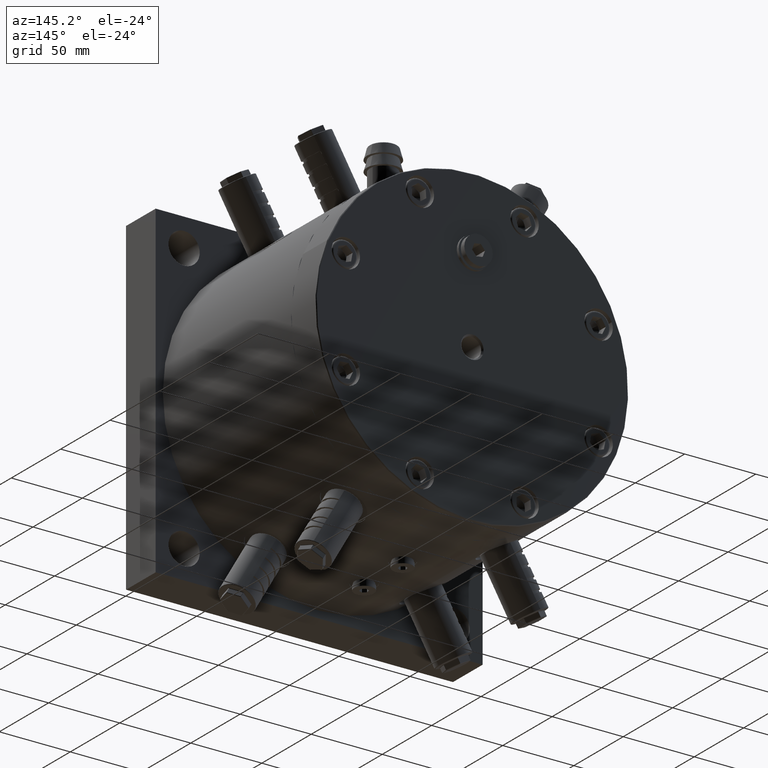
[diagram: clean part render]
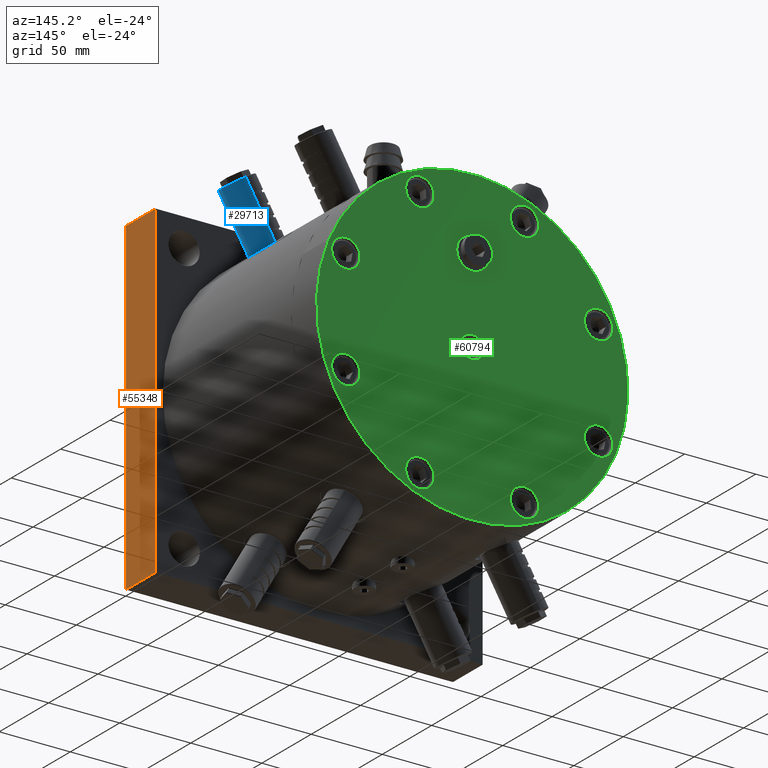
[diagram: same view with three faces highlighted in distinct colors, each labeled with its STEP entity id]
A machine part, auxiliary view with three faces highlighted in distinct colors.
Their STEP definitions:

[orange] entity #55348 — the highlighted planar face has unit normal (-1, 0, -0).
#143 = FACE_OUTER_BOUND ( 'NONE', #8235, .T. ) ;
#543 = CARTESIAN_POINT ( 'NONE',  ( 115.0000000000000000, 3.469446951953615000E-015, -115.0000000000000000 ) ) ;
#973 = VERTEX_POINT ( 'NONE', #70862 ) ;
#1152 = VECTOR ( 'NONE', #33477, 1000.000000000000000 ) ;
#2575 = VERTEX_POINT ( 'NONE', #12287 ) ;
#6454 = DIRECTION ( 'NONE',  ( -2.465922601272785300E-016, 1.478485803948513900E-018, 1.000000000000000000 ) ) ;
#7512 = AXIS2_PLACEMENT_3D ( 'NONE', #543, #40658, #28328 ) ;
#8235 = EDGE_LOOP ( 'NONE', ( #38298, #57284, #51667, #12713 ) ) ;
#11697 = CARTESIAN_POINT ( 'NONE',  ( 115.0000000000000000, 3.469446951953615000E-015, 115.0000000000000000 ) ) ;
#12287 = CARTESIAN_POINT ( 'NONE',  ( 115.0000000000000000, 30.00000000000000000, 115.0000000000000000 ) ) ;
#12713 = ORIENTED_EDGE ( 'NONE', *, *, #60974, .T. ) ;
#15196 = CARTESIAN_POINT ( 'NONE',  ( 115.0000000000000000, 3.469446951953615000E-015, -115.0000000000000000 ) ) ;
#15692 = VERTEX_POINT ( 'NONE', #50831 ) ;
#18186 = DIRECTION ( 'NONE',  ( -6.938893903907229900E-018, 1.000000000000000000, -1.387778780781446000E-017 ) ) ;
#21654 = LINE ( 'NONE', #11697, #46845 ) ;
#24488 = VECTOR ( 'NONE', #6454, 1000.000000000000000 ) ;
#25965 = CARTESIAN_POINT ( 'NONE',  ( 115.0000000000000000, 3.469446951953615000E-015, -115.0000000000000000 ) ) ;
#28328 = DIRECTION ( 'NONE',  ( 2.465922601272785300E-016, -1.478485803948513900E-018, -1.000000000000000000 ) ) ;
#33477 = DIRECTION ( 'NONE',  ( -6.938893903907229900E-018, 1.000000000000000000, -1.387778780781446000E-017 ) ) ;
#35054 = CARTESIAN_POINT ( 'NONE',  ( 115.0000000000000000, 30.00000000000000000, -115.0000000000000000 ) ) ;
#38298 = ORIENTED_EDGE ( 'NONE', *, *, #46335, .T. ) ;
#40658 = DIRECTION ( 'NONE',  ( -1.000000000000000000, 1.387778780781446000E-017, -2.465922601272785300E-016 ) ) ;
#44032 = EDGE_CURVE ( 'NONE', #51895, #15692, #61600, .T. ) ;
#46335 = EDGE_CURVE ( 'NONE', #973, #2575, #51337, .T. ) ;
#46845 = VECTOR ( 'NONE', #18186, 1000.000000000000000 ) ;
#49955 = VECTOR ( 'NONE', #66543, 1000.000000000000000 ) ;
#50831 = CARTESIAN_POINT ( 'NONE',  ( 115.0000000000000000, 3.469446951953615000E-015, 115.0000000000000000 ) ) ;
#51146 = PLANE ( 'NONE',  #7512 ) ;
#51337 = LINE ( 'NONE', #35054, #24488 ) ;
#51667 = ORIENTED_EDGE ( 'NONE', *, *, #44032, .F. ) ;
#51895 = VERTEX_POINT ( 'NONE', #25965 ) ;
#55348 = ADVANCED_FACE ( 'NONE', ( #143 ), #51146, .F. ) ;
#57271 = CARTESIAN_POINT ( 'NONE',  ( 115.0000000000000000, 3.469446951953615000E-015, -115.0000000000000000 ) ) ;
#57284 = ORIENTED_EDGE ( 'NONE', *, *, #61316, .F. ) ;
#60974 = EDGE_CURVE ( 'NONE', #51895, #973, #71883, .T. ) ;
#61316 = EDGE_CURVE ( 'NONE', #15692, #2575, #21654, .T. ) ;
#61600 = LINE ( 'NONE', #15196, #49955 ) ;
#66543 = DIRECTION ( 'NONE',  ( -2.465922601272785300E-016, 1.478485803948513900E-018, 1.000000000000000000 ) ) ;
#70862 = CARTESIAN_POINT ( 'NONE',  ( 115.0000000000000000, 30.00000000000000000, -115.0000000000000000 ) ) ;
#71883 = LINE ( 'NONE', #57271, #1152 ) ;

[blue] entity #29713 — the highlighted cylindrical surface (edge-blend (fillet) strip) has radius 12 mm, axis along (-0.5, -0, -0.866).
#216 = ORIENTED_EDGE ( 'NONE', *, *, #9299, .T. ) ;
#1353 = EDGE_CURVE ( 'NONE', #30569, #16799, #17588, .T. ) ;
#1820 = DIRECTION ( 'NONE',  ( -0.4999999999999882300, -8.673617379884045100E-019, -0.8660254037844454800 ) ) ;
#2420 = CARTESIAN_POINT ( 'NONE',  ( 74.09092823615343100, 44.76183381053864000, 133.3154147411833000 ) ) ;
#2950 = AXIS2_PLACEMENT_3D ( 'NONE', #35310, #12499, #45867 ) ;
#4154 = ORIENTED_EDGE ( 'NONE', *, *, #25219, .F. ) ;
#4660 = VECTOR ( 'NONE', #55728, 1000.000000000000100 ) ;
#5880 = ORIENTED_EDGE ( 'NONE', *, *, #63858, .F. ) ;
#6222 = VECTOR ( 'NONE', #24093, 1000.000000000000100 ) ;
#6456 = EDGE_CURVE ( 'NONE', #7893, #64915, #44349, .T. ) ;
#6485 = LINE ( 'NONE', #60551, #35201 ) ;
#6684 = CARTESIAN_POINT ( 'NONE',  ( 65.40907176384730800, 68.23816618946139600, 108.3056729146745900 ) ) ;
#7343 = EDGE_CURVE ( 'NONE', #10630, #54713, #27117, .T. ) ;
#7364 = EDGE_CURVE ( 'NONE', #7740, #51547, #53119, .T. ) ;
#7365 = CIRCLE ( 'NONE', #14873, 11.99999999999999500 ) ;
#7740 = VERTEX_POINT ( 'NONE', #45289 ) ;
#7893 = VERTEX_POINT ( 'NONE', #46807 ) ;
#8409 = EDGE_LOOP ( 'NONE', ( #48801, #58799, #67943, #4154, #216, #8520, #15675, #33713, #48445, #45001, #49046, #45494, #56337, #18723, #22058, #73091, #52466, #48631, #5880, #10735 ) ) ;
#8520 = ORIENTED_EDGE ( 'NONE', *, *, #65060, .F. ) ;
#9299 = EDGE_CURVE ( 'NONE', #33376, #57531, #22356, .T. ) ;
#9375 = VECTOR ( 'NONE', #1820, 1000.000000000000100 ) ;
#9956 = EDGE_CURVE ( 'NONE', #29503, #59210, #12849, .T. ) ;
#10459 = VECTOR ( 'NONE', #42108, 1000.000000000000100 ) ;
#10630 = VERTEX_POINT ( 'NONE', #43254 ) ;
#10735 = ORIENTED_EDGE ( 'NONE', *, *, #7343, .F. ) ;
#11916 = VECTOR ( 'NONE', #65315, 1000.000000000000100 ) ;
#12499 = DIRECTION ( 'NONE',  ( -0.4999999999999882900, -8.673617379884045100E-019, -0.8660254037844454800 ) ) ;
#12849 = LINE ( 'NONE', #70054, #71928 ) ;
#13159 = CARTESIAN_POINT ( 'NONE',  ( 64.40907176384730800, 68.23816618946139600, 106.5736221071058100 ) ) ;
#13668 = LINE ( 'NONE', #73923, #37004 ) ;
#13946 = CARTESIAN_POINT ( 'NONE',  ( 64.09092823615408500, 44.76183381053865400, 115.9949066654944000 ) ) ;
#14423 = CARTESIAN_POINT ( 'NONE',  ( 69.40907176384720900, 68.23816618946139600, 115.2338761449501900 ) ) ;
#14873 = AXIS2_PLACEMENT_3D ( 'NONE', #72266, #53828, #59089 ) ;
#15483 = LINE ( 'NONE', #56334, #16412 ) ;
#15486 = CARTESIAN_POINT ( 'NONE',  ( 61.40907176384740000, 68.23816618946139600, 101.3774696843992000 ) ) ;
#15675 = ORIENTED_EDGE ( 'NONE', *, *, #71031, .T. ) ;
#16412 = VECTOR ( 'NONE', #56089, 1000.000000000000100 ) ;
#16599 = CARTESIAN_POINT ( 'NONE',  ( 65.09092823615398500, 44.76183381053865400, 117.7269574730631900 ) ) ;
#16799 = VERTEX_POINT ( 'NONE', #15486 ) ;
#17126 = LINE ( 'NONE', #2420, #61926 ) ;
#17588 = LINE ( 'NONE', #69015, #32783 ) ;
#18723 = ORIENTED_EDGE ( 'NONE', *, *, #1353, .T. ) ;
#19772 = CYLINDRICAL_SURFACE ( 'NONE', #2950, 11.99999999999999500 ) ;
#20323 = LINE ( 'NONE', #59567, #10459 ) ;
#21160 = VERTEX_POINT ( 'NONE', #64520 ) ;
#22058 = ORIENTED_EDGE ( 'NONE', *, *, #46780, .F. ) ;
#22227 = EDGE_CURVE ( 'NONE', #65539, #21160, #29530, .T. ) ;
#22356 = LINE ( 'NONE', #48282, #35884 ) ;
#22951 = CARTESIAN_POINT ( 'NONE',  ( 78.15907176384656900, 68.23816618946136700, 130.3893207111781000 ) ) ;
#23480 = DIRECTION ( 'NONE',  ( 0.4999999999999882900, 8.673617379884045100E-019, 0.8660254037844454800 ) ) ;
#23693 = CARTESIAN_POINT ( 'NONE',  ( 78.40907176384656900, 68.23816618946136700, 130.8223334130703100 ) ) ;
#23966 = VECTOR ( 'NONE', #63775, 1000.000000000000100 ) ;
#24069 = DIRECTION ( 'NONE',  ( -0.4999999999999882300, -8.673617379884045100E-019, -0.8660254037844454800 ) ) ;
#24093 = DIRECTION ( 'NONE',  ( 0.4999999999999882300, 8.673617379884045100E-019, 0.8660254037844454800 ) ) ;
#24101 = VECTOR ( 'NONE', #24206, 1000.000000000000100 ) ;
#24206 = DIRECTION ( 'NONE',  ( -0.4999999999999882300, -8.673617379884045100E-019, -0.8660254037844454800 ) ) ;
#24403 = CARTESIAN_POINT ( 'NONE',  ( 74.09092823615343100, 44.76183381053864000, 133.3154147411833000 ) ) ;
#24606 = VERTEX_POINT ( 'NONE', #13946 ) ;
#25101 = CARTESIAN_POINT ( 'NONE',  ( 73.84092823615343100, 44.76183381053864000, 132.8824020392910900 ) ) ;
#25215 = DIRECTION ( 'NONE',  ( -0.4999999999999882300, -8.673617379884045100E-019, -0.8660254037844454800 ) ) ;
#25219 = EDGE_CURVE ( 'NONE', #33376, #59210, #20323, .T. ) ;
#25519 = DIRECTION ( 'NONE',  ( -0.4999999999999882300, -8.673617379884045100E-019, -0.8660254037844454800 ) ) ;
#25889 = LINE ( 'NONE', #23693, #24101 ) ;
#27117 = LINE ( 'NONE', #32933, #45057 ) ;
#27397 = VERTEX_POINT ( 'NONE', #13159 ) ;
#28823 = EDGE_CURVE ( 'NONE', #37932, #29503, #7365, .T. ) ;
#28962 = CARTESIAN_POINT ( 'NONE',  ( 74.09092823615380000, 44.76183381053865400, 133.3154147411831900 ) ) ;
#29503 = VERTEX_POINT ( 'NONE', #25101 ) ;
#29530 = CIRCLE ( 'NONE', #54436, 11.99999999999999800 ) ;
#29713 = ADVANCED_FACE ( 'NONE', ( #64555 ), #19772, .T. ) ;
#30343 = CARTESIAN_POINT ( 'NONE',  ( 60.40907176384739300, 68.23816618946139600, 99.64541887683030600 ) ) ;
#30569 = VERTEX_POINT ( 'NONE', #30343 ) ;
#32733 = VECTOR ( 'NONE', #24069, 1000.000000000000100 ) ;
#32783 = VECTOR ( 'NONE', #34801, 1000.000000000000100 ) ;
#32933 = CARTESIAN_POINT ( 'NONE',  ( 78.40907176384699500, 68.23816618946139600, 130.8223334130702000 ) ) ;
#33376 = VERTEX_POINT ( 'NONE', #55733 ) ;
#33713 = ORIENTED_EDGE ( 'NONE', *, *, #71913, .F. ) ;
#33793 = VECTOR ( 'NONE', #49904, 1000.000000000000100 ) ;
#34801 = DIRECTION ( 'NONE',  ( 0.4999999999999882300, 8.673617379884045100E-019, 0.8660254037844454800 ) ) ;
#35081 = LINE ( 'NONE', #71665, #55695 ) ;
#35201 = VECTOR ( 'NONE', #61524, 1000.000000000000100 ) ;
#35310 = CARTESIAN_POINT ( 'NONE',  ( 76.25000000000000000, 56.50000000000000000, 132.0688740771268200 ) ) ;
#35880 = CARTESIAN_POINT ( 'NONE',  ( 74.09092823615380000, 44.76183381053865400, 133.3154147411831900 ) ) ;
#35884 = VECTOR ( 'NONE', #25215, 1000.000000000000100 ) ;
#36201 = LINE ( 'NONE', #49051, #11916 ) ;
#37004 = VECTOR ( 'NONE', #51728, 1000.000000000000100 ) ;
#37932 = VERTEX_POINT ( 'NONE', #22951 ) ;
#38630 = CARTESIAN_POINT ( 'NONE',  ( 78.40907176384656900, 68.23816618946136700, 130.8223334130703100 ) ) ;
#42108 = DIRECTION ( 'NONE',  ( 0.4999999999999882300, 8.673617379884045100E-019, 0.8660254037844454800 ) ) ;
#42639 = LINE ( 'NONE', #52626, #32733 ) ;
#43254 = CARTESIAN_POINT ( 'NONE',  ( 73.40907176384709500, 68.23816618946139600, 122.1620793752260100 ) ) ;
#44349 = LINE ( 'NONE', #24403, #9375 ) ;
#45001 = ORIENTED_EDGE ( 'NONE', *, *, #60446, .T. ) ;
#45057 = VECTOR ( 'NONE', #45202, 1000.000000000000100 ) ;
#45202 = DIRECTION ( 'NONE',  ( -0.4999999999999882300, -8.673617379884045100E-019, -0.8660254037844454800 ) ) ;
#45289 = CARTESIAN_POINT ( 'NONE',  ( 68.40907176384720900, 68.23816618946139600, 113.5018253373814000 ) ) ;
#45494 = ORIENTED_EDGE ( 'NONE', *, *, #22227, .T. ) ;
#45867 = DIRECTION ( 'NONE',  ( -0.1799226469872140500, -0.9781805157884475600, 0.1038783886713746000 ) ) ;
#46780 = EDGE_CURVE ( 'NONE', #27397, #16799, #13668, .T. ) ;
#46807 = CARTESIAN_POINT ( 'NONE',  ( 60.09092823615419800, 44.76183381053865400, 109.0667034352190000 ) ) ;
#48282 = CARTESIAN_POINT ( 'NONE',  ( 74.09092823615343100, 44.76183381053864000, 133.3154147411833000 ) ) ;
#48445 = ORIENTED_EDGE ( 'NONE', *, *, #6456, .T. ) ;
#48631 = ORIENTED_EDGE ( 'NONE', *, *, #68788, .F. ) ;
#48801 = ORIENTED_EDGE ( 'NONE', *, *, #66122, .F. ) ;
#48915 = VERTEX_POINT ( 'NONE', #73478 ) ;
#49046 = ORIENTED_EDGE ( 'NONE', *, *, #53834, .T. ) ;
#49051 = CARTESIAN_POINT ( 'NONE',  ( 78.40907176384699500, 68.23816618946139600, 130.8223334130702000 ) ) ;
#49056 = LINE ( 'NONE', #38630, #33793 ) ;
#49245 = LINE ( 'NONE', #35880, #6222 ) ;
#49904 = DIRECTION ( 'NONE',  ( -0.4999999999999882300, -8.673617379884045100E-019, -0.8660254037844454800 ) ) ;
#51547 = VERTEX_POINT ( 'NONE', #6684 ) ;
#51673 = CARTESIAN_POINT ( 'NONE',  ( 61.09092823615409900, 44.76183381053865400, 110.7987542427876100 ) ) ;
#51728 = DIRECTION ( 'NONE',  ( -0.4999999999999882300, -8.673617379884045100E-019, -0.8660254037844454800 ) ) ;
#52466 = ORIENTED_EDGE ( 'NONE', *, *, #7364, .F. ) ;
#52626 = CARTESIAN_POINT ( 'NONE',  ( 74.09092823615343100, 44.76183381053864000, 133.3154147411833000 ) ) ;
#53119 = LINE ( 'NONE', #61710, #4660 ) ;
#53828 = DIRECTION ( 'NONE',  ( -0.4999999999999882900, -8.673617379884045100E-019, -0.8660254037844454800 ) ) ;
#53834 = EDGE_CURVE ( 'NONE', #48915, #65539, #42639, .T. ) ;
#54436 = AXIS2_PLACEMENT_3D ( 'NONE', #57316, #23480, #63539 ) ;
#54465 = DIRECTION ( 'NONE',  ( -0.4999999999999882300, -8.673617379884045100E-019, -0.8660254037844454800 ) ) ;
#54713 = VERTEX_POINT ( 'NONE', #71519 ) ;
#55242 = EDGE_CURVE ( 'NONE', #30569, #21160, #35081, .T. ) ;
#55695 = VECTOR ( 'NONE', #54465, 1000.000000000000100 ) ;
#55728 = DIRECTION ( 'NONE',  ( -0.4999999999999882300, -8.673617379884045100E-019, -0.8660254037844454800 ) ) ;
#55733 = CARTESIAN_POINT ( 'NONE',  ( 68.09092823615399900, 44.76183381053865400, 122.9231098957700000 ) ) ;
#56089 = DIRECTION ( 'NONE',  ( -0.4999999999999882300, -8.673617379884045100E-019, -0.8660254037844454800 ) ) ;
#56334 = CARTESIAN_POINT ( 'NONE',  ( 74.09092823615380000, 44.76183381053865400, 133.3154147411831900 ) ) ;
#56337 = ORIENTED_EDGE ( 'NONE', *, *, #55242, .F. ) ;
#57316 = CARTESIAN_POINT ( 'NONE',  ( 54.50000000000090200, 56.50000000000000000, 94.39676901250341200 ) ) ;
#57448 = CARTESIAN_POINT ( 'NONE',  ( 52.34092823615402800, 44.76183381053864000, 95.64330967656006500 ) ) ;
#57531 = VERTEX_POINT ( 'NONE', #16599 ) ;
#58799 = ORIENTED_EDGE ( 'NONE', *, *, #28823, .T. ) ;
#58806 = VERTEX_POINT ( 'NONE', #14423 ) ;
#59089 = DIRECTION ( 'NONE',  ( 0.1799226469872140500, 0.9781805157884475600, -0.1038783886713746000 ) ) ;
#59210 = VERTEX_POINT ( 'NONE', #71996 ) ;
#59567 = CARTESIAN_POINT ( 'NONE',  ( 74.09092823615380000, 44.76183381053865400, 133.3154147411831900 ) ) ;
#60446 = EDGE_CURVE ( 'NONE', #64915, #48915, #15483, .T. ) ;
#60551 = CARTESIAN_POINT ( 'NONE',  ( 78.40907176384699500, 68.23816618946139600, 130.8223334130702000 ) ) ;
#60624 = EDGE_CURVE ( 'NONE', #51547, #27397, #36201, .T. ) ;
#61524 = DIRECTION ( 'NONE',  ( -0.4999999999999882300, -8.673617379884045100E-019, -0.8660254037844454800 ) ) ;
#61710 = CARTESIAN_POINT ( 'NONE',  ( 78.40907176384656900, 68.23816618946136700, 130.8223334130703100 ) ) ;
#61926 = VECTOR ( 'NONE', #70759, 1000.000000000000100 ) ;
#63380 = LINE ( 'NONE', #28962, #23966 ) ;
#63539 = DIRECTION ( 'NONE',  ( 0.1799226469872146100, 0.9781805157884472200, -0.1038783886713757200 ) ) ;
#63775 = DIRECTION ( 'NONE',  ( 0.4999999999999882300, 8.673617379884045100E-019, 0.8660254037844454800 ) ) ;
#63858 = EDGE_CURVE ( 'NONE', #54713, #58806, #25889, .T. ) ;
#64520 = CARTESIAN_POINT ( 'NONE',  ( 56.65907176384716600, 68.23816618946136700, 93.15022834844707200 ) ) ;
#64555 = FACE_OUTER_BOUND ( 'NONE', #8409, .T. ) ;
#64915 = VERTEX_POINT ( 'NONE', #65813 ) ;
#65060 = EDGE_CURVE ( 'NONE', #24606, #57531, #63380, .T. ) ;
#65315 = DIRECTION ( 'NONE',  ( -0.4999999999999882300, -8.673617379884045100E-019, -0.8660254037844454800 ) ) ;
#65539 = VERTEX_POINT ( 'NONE', #57448 ) ;
#65813 = CARTESIAN_POINT ( 'NONE',  ( 57.09092823615419800, 44.76183381053865400, 103.8705510125122100 ) ) ;
#66122 = EDGE_CURVE ( 'NONE', #37932, #10630, #49056, .T. ) ;
#67943 = ORIENTED_EDGE ( 'NONE', *, *, #9956, .T. ) ;
#68021 = VERTEX_POINT ( 'NONE', #51673 ) ;
#68788 = EDGE_CURVE ( 'NONE', #58806, #7740, #6485, .T. ) ;
#69015 = CARTESIAN_POINT ( 'NONE',  ( 78.40907176384699500, 68.23816618946139600, 130.8223334130702000 ) ) ;
#70054 = CARTESIAN_POINT ( 'NONE',  ( 74.09092823615343100, 44.76183381053864000, 133.3154147411833000 ) ) ;
#70759 = DIRECTION ( 'NONE',  ( -0.4999999999999882300, -8.673617379884045100E-019, -0.8660254037844454800 ) ) ;
#71031 = EDGE_CURVE ( 'NONE', #24606, #68021, #17126, .T. ) ;
#71519 = CARTESIAN_POINT ( 'NONE',  ( 72.40907176384709500, 68.23816618946139600, 120.4300285676570000 ) ) ;
#71665 = CARTESIAN_POINT ( 'NONE',  ( 78.40907176384656900, 68.23816618946136700, 130.8223334130703100 ) ) ;
#71913 = EDGE_CURVE ( 'NONE', #7893, #68021, #49245, .T. ) ;
#71928 = VECTOR ( 'NONE', #25519, 1000.000000000000100 ) ;
#71996 = CARTESIAN_POINT ( 'NONE',  ( 69.09092823615390000, 44.76183381053865400, 124.6551607033389900 ) ) ;
#72266 = CARTESIAN_POINT ( 'NONE',  ( 76.00000000000000000, 56.50000000000000000, 131.6358613752345800 ) ) ;
#73091 = ORIENTED_EDGE ( 'NONE', *, *, #60624, .F. ) ;
#73478 = CARTESIAN_POINT ( 'NONE',  ( 56.09092823615419800, 44.76183381053865400, 102.1385002049432000 ) ) ;
#73923 = CARTESIAN_POINT ( 'NONE',  ( 78.40907176384656900, 68.23816618946136700, 130.8223334130703100 ) ) ;

[green] entity #60794 — the highlighted planar face has unit normal (0, 1, 0).
#1063 = CIRCLE ( 'NONE', #1236, 10.00000000000000000 ) ;
#1236 = AXIS2_PLACEMENT_3D ( 'NONE', #12139, #35976, #47016 ) ;
#1474 = VERTEX_POINT ( 'NONE', #1695 ) ;
#1679 = ORIENTED_EDGE ( 'NONE', *, *, #21426, .T. ) ;
#1695 = CARTESIAN_POINT ( 'NONE',  ( 7.391036260090283200, 185.0000000000000000, 3.061467458920527300 ) ) ;
#1776 = VERTEX_POINT ( 'NONE', #63916 ) ;
#1842 = CIRCLE ( 'NONE', #33562, 10.00000000000000200 ) ;
#3060 = DIRECTION ( 'NONE',  ( 0.9238795325112788600, 0.0000000000000000000, 0.3826834323651092100 ) ) ;
#3490 = DIRECTION ( 'NONE',  ( 0.9238795325112944000, 0.0000000000000000000, -0.3826834323650711300 ) ) ;
#3655 = CARTESIAN_POINT ( 'NONE',  ( 98.16220032932535800, 185.0000000000000000, -40.66011468878851100 ) ) ;
#3695 = CARTESIAN_POINT ( 'NONE',  ( 40.66011468879322900, 185.0000000000000000, -98.16220032932356800 ) ) ;
#3716 = CARTESIAN_POINT ( 'NONE',  ( -33.00644604149043500, 185.0000000000000000, 79.68460967909759100 ) ) ;
#3818 = ORIENTED_EDGE ( 'NONE', *, *, #37213, .T. ) ;
#4475 = DIRECTION ( 'NONE',  ( 8.673617352622729800E-018, 1.000000000000000000, 3.524176929506979800E-026 ) ) ;
#4538 = EDGE_LOOP ( 'NONE', ( #14282, #7881 ) ) ;
#4566 = DIRECTION ( 'NONE',  ( -0.9238795325112813000, 0.0000000000000000000, -0.3826834323651029900 ) ) ;
#4603 = DIRECTION ( 'NONE',  ( -0.9238795325112813000, 0.0000000000000000000, -0.3826834323651031000 ) ) ;
#4614 = DIRECTION ( 'NONE',  ( -0.3826834323650752400, 0.0000000000000000000, -0.9238795325112928400 ) ) ;
#5201 = CARTESIAN_POINT ( 'NONE',  ( 33.00644604149097500, 185.0000000000000000, -79.68460967909803100 ) ) ;
#5391 = CIRCLE ( 'NONE', #61961, 10.00000000000000700 ) ;
#6529 = FACE_BOUND ( 'NONE', #8284, .T. ) ;
#6530 = DIRECTION ( 'NONE',  ( 8.673617352622729800E-018, 1.000000000000000000, 3.524176929506979800E-026 ) ) ;
#7171 = DIRECTION ( 'NONE',  ( 8.673617352622729800E-018, 1.000000000000000000, 3.524176929506979800E-026 ) ) ;
#7583 = VERTEX_POINT ( 'NONE', #66783 ) ;
#7881 = ORIENTED_EDGE ( 'NONE', *, *, #61786, .F. ) ;
#8067 = CARTESIAN_POINT ( 'NONE',  ( -8.028431720617689900E-013, 185.0000000000000000, 59.00000000000000000 ) ) ;
#8118 = CIRCLE ( 'NONE', #64506, 8.474999999999996100 ) ;
#8284 = EDGE_LOOP ( 'NONE', ( #74118, #29387 ) ) ;
#8712 = EDGE_CURVE ( 'NONE', #64168, #73541, #1842, .T. ) ;
#8755 = DIRECTION ( 'NONE',  ( 8.673617352622729800E-018, 1.000000000000000000, 3.524176929506979800E-026 ) ) ;
#9051 = VERTEX_POINT ( 'NONE', #3716 ) ;
#9066 = DIRECTION ( 'NONE',  ( 8.673617352622729800E-018, 1.000000000000000000, 3.524176929506979800E-026 ) ) ;
#9755 = CARTESIAN_POINT ( 'NONE',  ( 5.754808177238770300E-015, 185.0000000000000000, -3.095821873212600000E-013 ) ) ;
#10541 = DIRECTION ( 'NONE',  ( 8.673617352622729800E-018, 1.000000000000000000, 3.524176929506979800E-026 ) ) ;
#10578 = DIRECTION ( 'NONE',  ( -8.673617352622729800E-018, -1.000000000000000000, -3.524176929506979800E-026 ) ) ;
#10651 = CARTESIAN_POINT ( 'NONE',  ( 5.754808177238770300E-015, 185.0000000000000000, -3.095821873212600000E-013 ) ) ;
#10773 = DIRECTION ( 'NONE',  ( -0.3826834323650752400, 0.0000000000000000000, -0.9238795325112928400 ) ) ;
#11119 = EDGE_CURVE ( 'NONE', #7583, #9051, #5391, .T. ) ;
#11539 = DIRECTION ( 'NONE',  ( 8.673617352622729800E-018, 1.000000000000000000, 3.524176929506979800E-026 ) ) ;
#11778 = VERTEX_POINT ( 'NONE', #34249 ) ;
#11901 = VERTEX_POINT ( 'NONE', #36013 ) ;
#12139 = CARTESIAN_POINT ( 'NONE',  ( -88.92340500421210000, 185.0000000000000000, 36.83328036513785300 ) ) ;
#12392 = VERTEX_POINT ( 'NONE', #19337 ) ;
#12471 = EDGE_CURVE ( 'NONE', #73017, #42464, #70574, .T. ) ;
#12483 = EDGE_CURVE ( 'NONE', #68448, #14768, #71518, .T. ) ;
#13326 = CARTESIAN_POINT ( 'NONE',  ( 36.83328036514210200, 185.0000000000000000, -88.92340500421079200 ) ) ;
#13921 = ORIENTED_EDGE ( 'NONE', *, *, #8712, .F. ) ;
#13954 = VERTEX_POINT ( 'NONE', #38614 ) ;
#13989 = EDGE_CURVE ( 'NONE', #34426, #1776, #55363, .T. ) ;
#14080 = CARTESIAN_POINT ( 'NONE',  ( 79.68460967909798900, 185.0000000000000000, 33.00644604148982400 ) ) ;
#14153 = CARTESIAN_POINT ( 'NONE',  ( -98.16220032932339700, 185.0000000000000000, -40.66011468879319300 ) ) ;
#14188 = EDGE_LOOP ( 'NONE', ( #48807, #3818 ) ) ;
#14282 = ORIENTED_EDGE ( 'NONE', *, *, #63397, .F. ) ;
#14496 = DIRECTION ( 'NONE',  ( 0.9238795325112788600, 0.0000000000000000000, 0.3826834323651092100 ) ) ;
#14541 = CIRCLE ( 'NONE', #74228, 109.4999999999999900 ) ;
#14556 = AXIS2_PLACEMENT_3D ( 'NONE', #39120, #10541, #56418 ) ;
#14568 = FACE_BOUND ( 'NONE', #58387, .T. ) ;
#14768 = VERTEX_POINT ( 'NONE', #3695 ) ;
#15333 = EDGE_LOOP ( 'NONE', ( #32458, #13921 ) ) ;
#15503 = CIRCLE ( 'NONE', #53588, 10.00000000000000000 ) ;
#15533 = EDGE_CURVE ( 'NONE', #31909, #24126, #21863, .T. ) ;
#17162 = EDGE_CURVE ( 'NONE', #42464, #73017, #57053, .T. ) ;
#17283 = DIRECTION ( 'NONE',  ( 0.3826834323651062700, 0.0000000000000000000, -0.9238795325112798600 ) ) ;
#17659 = CIRCLE ( 'NONE', #61232, 109.4999999999999900 ) ;
#18042 = DIRECTION ( 'NONE',  ( 0.3826834323650683000, 0.0000000000000000000, 0.9238795325112957300 ) ) ;
#18130 = CIRCLE ( 'NONE', #31761, 7.999999999999997300 ) ;
#19266 = CARTESIAN_POINT ( 'NONE',  ( -88.92340500421060800, 185.0000000000000000, -36.83328036514210200 ) ) ;
#19337 = CARTESIAN_POINT ( 'NONE',  ( -79.68460967909780400, 185.0000000000000000, -33.00644604149101000 ) ) ;
#19414 = EDGE_LOOP ( 'NONE', ( #25848, #63228 ) ) ;
#19862 = AXIS2_PLACEMENT_3D ( 'NONE', #62544, #68492, #51533 ) ;
#19928 = CIRCLE ( 'NONE', #28862, 10.00000000000000200 ) ;
#20290 = CARTESIAN_POINT ( 'NONE',  ( -36.83328036514150500, 185.0000000000000000, 88.92340500421039500 ) ) ;
#20791 = EDGE_CURVE ( 'NONE', #14768, #68448, #33192, .T. ) ;
#21426 = EDGE_CURVE ( 'NONE', #24126, #31909, #8118, .T. ) ;
#21543 = ORIENTED_EDGE ( 'NONE', *, *, #20791, .F. ) ;
#21659 = CARTESIAN_POINT ( 'NONE',  ( 5.754808177238770300E-015, 185.0000000000000000, -3.095821873212600000E-013 ) ) ;
#21840 = CARTESIAN_POINT ( 'NONE',  ( -8.028431720617689900E-013, 185.0000000000000000, 59.00000000000000000 ) ) ;
#21863 = CIRCLE ( 'NONE', #44010, 8.474999999999996100 ) ;
#21996 = EDGE_CURVE ( 'NONE', #50275, #12392, #37617, .T. ) ;
#22627 = DIRECTION ( 'NONE',  ( 8.673617352622729800E-018, 1.000000000000000000, 3.524176929506979800E-026 ) ) ;
#22872 = DIRECTION ( 'NONE',  ( -0.9238795325112811900, 0.0000000000000000000, -0.3826834323651033300 ) ) ;
#23109 = CARTESIAN_POINT ( 'NONE',  ( -33.00644604148716600, 185.0000000000000000, -79.68460967909953800 ) ) ;
#23558 = ORIENTED_EDGE ( 'NONE', *, *, #17162, .F. ) ;
#24126 = VERTEX_POINT ( 'NONE', #53173 ) ;
#24179 = AXIS2_PLACEMENT_3D ( 'NONE', #50628, #9066, #3060 ) ;
#24928 = ORIENTED_EDGE ( 'NONE', *, *, #15533, .T. ) ;
#25485 = AXIS2_PLACEMENT_3D ( 'NONE', #21659, #50005, #72247 ) ;
#25528 = ORIENTED_EDGE ( 'NONE', *, *, #73175, .T. ) ;
#25604 = DIRECTION ( 'NONE',  ( -8.673617352622729800E-018, -1.000000000000000000, -3.524176929506979800E-026 ) ) ;
#25848 = ORIENTED_EDGE ( 'NONE', *, *, #13989, .F. ) ;
#26090 = ORIENTED_EDGE ( 'NONE', *, *, #46115, .F. ) ;
#27124 = CARTESIAN_POINT ( 'NONE',  ( 33.00644604148769900, 185.0000000000000000, 79.68460967909877000 ) ) ;
#27431 = DIRECTION ( 'NONE',  ( -8.673617352622729800E-018, -1.000000000000000000, -3.524176929506979800E-026 ) ) ;
#27947 = AXIS2_PLACEMENT_3D ( 'NONE', #13326, #60166, #65641 ) ;
#28862 = AXIS2_PLACEMENT_3D ( 'NONE', #57013, #68205, #4614 ) ;
#29387 = ORIENTED_EDGE ( 'NONE', *, *, #11119, .F. ) ;
#29824 = FACE_OUTER_BOUND ( 'NONE', #14188, .T. ) ;
#29956 = DIRECTION ( 'NONE',  ( 0.3826834323650683000, 0.0000000000000000000, 0.9238795325112957300 ) ) ;
#30366 = AXIS2_PLACEMENT_3D ( 'NONE', #30699, #7171, #29956 ) ;
#30476 = CIRCLE ( 'NONE', #24179, 10.00000000000000400 ) ;
#30699 = CARTESIAN_POINT ( 'NONE',  ( -36.83328036513785300, 185.0000000000000000, -88.92340500421249800 ) ) ;
#31258 = DIRECTION ( 'NONE',  ( -0.9238795325112967300, 0.0000000000000000000, 0.3826834323650654100 ) ) ;
#31513 = EDGE_CURVE ( 'NONE', #73541, #64168, #73366, .T. ) ;
#31761 = AXIS2_PLACEMENT_3D ( 'NONE', #10651, #27431, #62237 ) ;
#31909 = VERTEX_POINT ( 'NONE', #72180 ) ;
#32458 = ORIENTED_EDGE ( 'NONE', *, *, #31513, .F. ) ;
#32815 = DIRECTION ( 'NONE',  ( -0.9238795325112811900, 0.0000000000000000000, -0.3826834323651030500 ) ) ;
#32883 = DIRECTION ( 'NONE',  ( -0.9238795325112967300, 0.0000000000000000000, 0.3826834323650654100 ) ) ;
#33192 = CIRCLE ( 'NONE', #27947, 9.999999999999992900 ) ;
#33383 = DIRECTION ( 'NONE',  ( 8.673617352622729800E-018, 1.000000000000000000, 3.524176929506979800E-026 ) ) ;
#33562 = AXIS2_PLACEMENT_3D ( 'NONE', #35108, #40136, #18042 ) ;
#34249 = CARTESIAN_POINT ( 'NONE',  ( 98.16220032932359600, 185.0000000000000000, 40.66011468879187900 ) ) ;
#34426 = VERTEX_POINT ( 'NONE', #27124 ) ;
#35108 = CARTESIAN_POINT ( 'NONE',  ( -36.83328036513785300, 185.0000000000000000, -88.92340500421249800 ) ) ;
#35223 = ORIENTED_EDGE ( 'NONE', *, *, #71702, .F. ) ;
#35240 = AXIS2_PLACEMENT_3D ( 'NONE', #19266, #8755, #14496 ) ;
#35836 = CIRCLE ( 'NONE', #19862, 9.999999999999992900 ) ;
#35976 = DIRECTION ( 'NONE',  ( 8.673617352622729800E-018, 1.000000000000000000, 3.524176929506979800E-026 ) ) ;
#36013 = CARTESIAN_POINT ( 'NONE',  ( -98.16220032932504600, 185.0000000000000000, 40.66011468878856800 ) ) ;
#36777 = AXIS2_PLACEMENT_3D ( 'NONE', #45146, #11539, #10773 ) ;
#37213 = EDGE_CURVE ( 'NONE', #68944, #13954, #14541, .T. ) ;
#37526 = DIRECTION ( 'NONE',  ( 8.673617352622729800E-018, 1.000000000000000000, 3.524176929506979800E-026 ) ) ;
#37617 = CIRCLE ( 'NONE', #35240, 10.00000000000000400 ) ;
#37678 = EDGE_LOOP ( 'NONE', ( #72776, #25528 ) ) ;
#37895 = FACE_BOUND ( 'NONE', #4538, .T. ) ;
#38171 = CARTESIAN_POINT ( 'NONE',  ( -40.66011468878853900, 185.0000000000000000, -98.16220032932545800 ) ) ;
#38614 = CARTESIAN_POINT ( 'NONE',  ( 101.1648088099852700, 185.0000000000000000, 41.90383584397846300 ) ) ;
#38877 = CARTESIAN_POINT ( 'NONE',  ( 88.92340500421239800, 185.0000000000000000, -36.83328036513785300 ) ) ;
#38961 = DIRECTION ( 'NONE',  ( -8.673617352622729800E-018, -1.000000000000000000, -3.524176929506979800E-026 ) ) ;
#39120 = CARTESIAN_POINT ( 'NONE',  ( 36.83328036514210200, 185.0000000000000000, -88.92340500421079200 ) ) ;
#40136 = DIRECTION ( 'NONE',  ( 8.673617352622729800E-018, 1.000000000000000000, 3.524176929506979800E-026 ) ) ;
#42464 = VERTEX_POINT ( 'NONE', #62419 ) ;
#43333 = FACE_BOUND ( 'NONE', #72958, .T. ) ;
#43417 = DIRECTION ( 'NONE',  ( 8.673617352622729800E-018, 1.000000000000000000, 3.524176929506979800E-026 ) ) ;
#44010 = AXIS2_PLACEMENT_3D ( 'NONE', #8067, #25604, #71373 ) ;
#44049 = AXIS2_PLACEMENT_3D ( 'NONE', #51636, #6530, #17283 ) ;
#44760 = CARTESIAN_POINT ( 'NONE',  ( 5.754808177238770300E-015, 185.0000000000000000, -3.095821873212600000E-013 ) ) ;
#44859 = CARTESIAN_POINT ( 'NONE',  ( 5.754808177238770300E-015, 185.0000000000000000, -3.095821873212600000E-013 ) ) ;
#45079 = FACE_BOUND ( 'NONE', #37678, .T. ) ;
#45146 = CARTESIAN_POINT ( 'NONE',  ( 36.83328036513844900, 185.0000000000000000, 88.92340500421170200 ) ) ;
#45589 = EDGE_LOOP ( 'NONE', ( #35223, #66893 ) ) ;
#46115 = EDGE_CURVE ( 'NONE', #46377, #11901, #15503, .T. ) ;
#46191 = ORIENTED_EDGE ( 'NONE', *, *, #54999, .F. ) ;
#46377 = VERTEX_POINT ( 'NONE', #52310 ) ;
#47016 = DIRECTION ( 'NONE',  ( 0.9238795325112944000, 0.0000000000000000000, -0.3826834323650711300 ) ) ;
#47233 = EDGE_CURVE ( 'NONE', #9051, #7583, #63834, .T. ) ;
#48807 = ORIENTED_EDGE ( 'NONE', *, *, #74022, .T. ) ;
#49155 = AXIS2_PLACEMENT_3D ( 'NONE', #38877, #33383, #32883 ) ;
#49281 = VERTEX_POINT ( 'NONE', #62735 ) ;
#50005 = DIRECTION ( 'NONE',  ( 8.673617352292311100E-018, 1.000000000000000000, 3.510490423912988000E-026 ) ) ;
#50275 = VERTEX_POINT ( 'NONE', #14153 ) ;
#50628 = CARTESIAN_POINT ( 'NONE',  ( -88.92340500421060800, 185.0000000000000000, -36.83328036514210200 ) ) ;
#51311 = FACE_BOUND ( 'NONE', #45589, .T. ) ;
#51533 = DIRECTION ( 'NONE',  ( -0.9238795325112811900, 0.0000000000000000000, -0.3826834323651033300 ) ) ;
#51636 = CARTESIAN_POINT ( 'NONE',  ( -36.83328036514150500, 185.0000000000000000, 88.92340500421039500 ) ) ;
#52310 = CARTESIAN_POINT ( 'NONE',  ( -79.68460967909915400, 185.0000000000000000, 33.00644604148714500 ) ) ;
#52606 = EDGE_LOOP ( 'NONE', ( #23558, #71421 ) ) ;
#53173 = CARTESIAN_POINT ( 'NONE',  ( -7.829879038033911200, 185.0000000000000000, 55.75675791070575100 ) ) ;
#53588 = AXIS2_PLACEMENT_3D ( 'NONE', #61355, #56095, #3490 ) ;
#54943 = CIRCLE ( 'NONE', #64412, 9.999999999999992900 ) ;
#54999 = EDGE_CURVE ( 'NONE', #11901, #46377, #1063, .T. ) ;
#55041 = CARTESIAN_POINT ( 'NONE',  ( 88.92340500421239800, 185.0000000000000000, -36.83328036513785300 ) ) ;
#55363 = CIRCLE ( 'NONE', #36777, 10.00000000000000200 ) ;
#55694 = EDGE_LOOP ( 'NONE', ( #26090, #46191 ) ) ;
#56095 = DIRECTION ( 'NONE',  ( 8.673617352622729800E-018, 1.000000000000000000, 3.524176929506979800E-026 ) ) ;
#56099 = DIRECTION ( 'NONE',  ( 8.673617352622729800E-018, 1.000000000000000000, 3.524176929506979800E-026 ) ) ;
#56418 = DIRECTION ( 'NONE',  ( -0.3826834323651130400, 0.0000000000000000000, 0.9238795325112771900 ) ) ;
#56711 = FACE_BOUND ( 'NONE', #52606, .T. ) ;
#57013 = CARTESIAN_POINT ( 'NONE',  ( 36.83328036513844900, 185.0000000000000000, 88.92340500421170200 ) ) ;
#57053 = CIRCLE ( 'NONE', #59456, 10.00000000000000500 ) ;
#58387 = EDGE_LOOP ( 'NONE', ( #65127, #21543 ) ) ;
#58547 = FACE_BOUND ( 'NONE', #55694, .T. ) ;
#59456 = AXIS2_PLACEMENT_3D ( 'NONE', #55041, #37526, #31258 ) ;
#60166 = DIRECTION ( 'NONE',  ( 8.673617352622729800E-018, 1.000000000000000000, 3.524176929506979800E-026 ) ) ;
#60266 = AXIS2_PLACEMENT_3D ( 'NONE', #44760, #38961, #4603 ) ;
#60794 = ADVANCED_FACE ( 'NONE', ( #45079, #43333, #29824, #56711, #14568, #66518, #51311, #58547, #6529, #62078, #37895 ), #67481, .T. ) ;
#61232 = AXIS2_PLACEMENT_3D ( 'NONE', #44859, #4475, #67805 ) ;
#61355 = CARTESIAN_POINT ( 'NONE',  ( -88.92340500421210000, 185.0000000000000000, 36.83328036513785300 ) ) ;
#61761 = CARTESIAN_POINT ( 'NONE',  ( -101.1648088099852700, 185.0000000000000000, -41.90383584397907400 ) ) ;
#61786 = EDGE_CURVE ( 'NONE', #11778, #67543, #54943, .T. ) ;
#61961 = AXIS2_PLACEMENT_3D ( 'NONE', #20290, #43417, #67321 ) ;
#62078 = FACE_BOUND ( 'NONE', #19414, .T. ) ;
#62237 = DIRECTION ( 'NONE',  ( -0.9238795325112813000, 0.0000000000000000000, -0.3826834323651031000 ) ) ;
#62419 = CARTESIAN_POINT ( 'NONE',  ( 79.68460967909942400, 185.0000000000000000, -33.00644604148719500 ) ) ;
#62544 = CARTESIAN_POINT ( 'NONE',  ( 88.92340500421079200, 185.0000000000000000, 36.83328036514085100 ) ) ;
#62735 = CARTESIAN_POINT ( 'NONE',  ( -7.391036260090271700, 185.0000000000000000, -3.061467458921145900 ) ) ;
#63228 = ORIENTED_EDGE ( 'NONE', *, *, #68921, .F. ) ;
#63397 = EDGE_CURVE ( 'NONE', #67543, #11778, #35836, .T. ) ;
#63834 = CIRCLE ( 'NONE', #44049, 10.00000000000000700 ) ;
#63916 = CARTESIAN_POINT ( 'NONE',  ( 40.66011468878920000, 185.0000000000000000, 98.16220032932463400 ) ) ;
#64168 = VERTEX_POINT ( 'NONE', #38171 ) ;
#64412 = AXIS2_PLACEMENT_3D ( 'NONE', #74154, #22627, #22872 ) ;
#64506 = AXIS2_PLACEMENT_3D ( 'NONE', #21840, #10578, #4566 ) ;
#65127 = ORIENTED_EDGE ( 'NONE', *, *, #12483, .F. ) ;
#65641 = DIRECTION ( 'NONE',  ( -0.3826834323651130400, 0.0000000000000000000, 0.9238795325112771900 ) ) ;
#66518 = FACE_BOUND ( 'NONE', #15333, .T. ) ;
#66783 = CARTESIAN_POINT ( 'NONE',  ( -40.66011468879256800, 185.0000000000000000, 98.16220032932318400 ) ) ;
#66893 = ORIENTED_EDGE ( 'NONE', *, *, #21996, .F. ) ;
#67321 = DIRECTION ( 'NONE',  ( 0.3826834323651062700, 0.0000000000000000000, -0.9238795325112798600 ) ) ;
#67481 = PLANE ( 'NONE',  #25485 ) ;
#67543 = VERTEX_POINT ( 'NONE', #14080 ) ;
#67805 = DIRECTION ( 'NONE',  ( -0.9238795325112811900, 0.0000000000000000000, -0.3826834323651030500 ) ) ;
#68205 = DIRECTION ( 'NONE',  ( 8.673617352622729800E-018, 1.000000000000000000, 3.524176929506979800E-026 ) ) ;
#68448 = VERTEX_POINT ( 'NONE', #5201 ) ;
#68492 = DIRECTION ( 'NONE',  ( 8.673617352622729800E-018, 1.000000000000000000, 3.524176929506979800E-026 ) ) ;
#68921 = EDGE_CURVE ( 'NONE', #1776, #34426, #19928, .T. ) ;
#68944 = VERTEX_POINT ( 'NONE', #61761 ) ;
#68971 = EDGE_CURVE ( 'NONE', #49281, #1474, #18130, .T. ) ;
#70574 = CIRCLE ( 'NONE', #49155, 10.00000000000000500 ) ;
#71373 = DIRECTION ( 'NONE',  ( -0.9238795325112813000, 0.0000000000000000000, -0.3826834323651029900 ) ) ;
#71421 = ORIENTED_EDGE ( 'NONE', *, *, #12471, .F. ) ;
#71462 = CIRCLE ( 'NONE', #60266, 7.999999999999997300 ) ;
#71518 = CIRCLE ( 'NONE', #14556, 9.999999999999992900 ) ;
#71702 = EDGE_CURVE ( 'NONE', #12392, #50275, #30476, .T. ) ;
#72180 = CARTESIAN_POINT ( 'NONE',  ( 7.829879038032304500, 185.0000000000000000, 62.24324208929424900 ) ) ;
#72247 = DIRECTION ( 'NONE',  ( -0.9238795325112811900, 8.013377558051621000E-018, -0.3826834323651030500 ) ) ;
#72776 = ORIENTED_EDGE ( 'NONE', *, *, #68971, .T. ) ;
#72958 = EDGE_LOOP ( 'NONE', ( #1679, #24928 ) ) ;
#73017 = VERTEX_POINT ( 'NONE', #3655 ) ;
#73175 = EDGE_CURVE ( 'NONE', #1474, #49281, #71462, .T. ) ;
#73366 = CIRCLE ( 'NONE', #30366, 10.00000000000000200 ) ;
#73541 = VERTEX_POINT ( 'NONE', #23109 ) ;
#74022 = EDGE_CURVE ( 'NONE', #13954, #68944, #17659, .T. ) ;
#74118 = ORIENTED_EDGE ( 'NONE', *, *, #47233, .F. ) ;
#74154 = CARTESIAN_POINT ( 'NONE',  ( 88.92340500421079200, 185.0000000000000000, 36.83328036514085100 ) ) ;
#74228 = AXIS2_PLACEMENT_3D ( 'NONE', #9755, #56099, #32815 ) ;